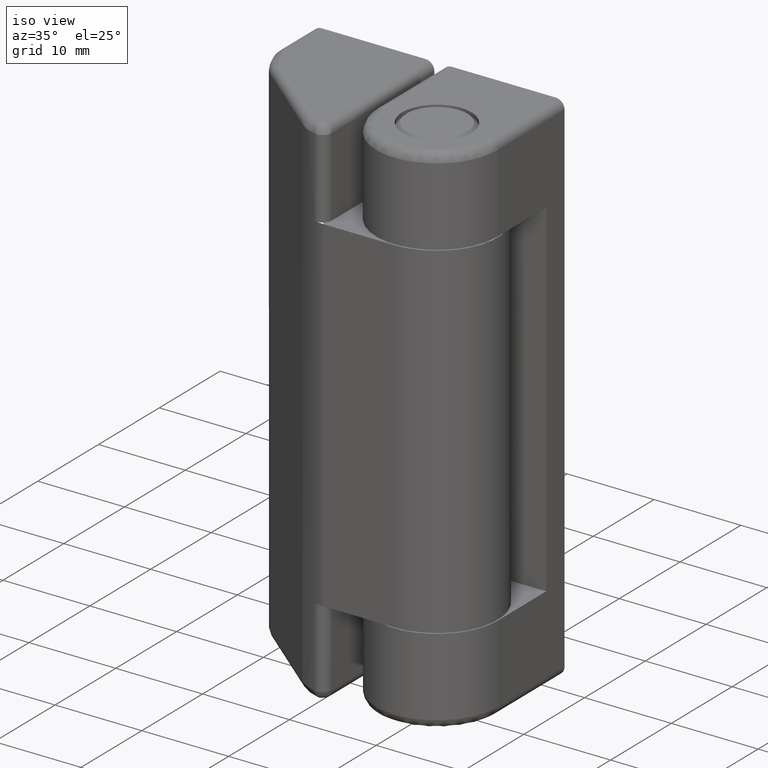
[diagram: clean part render]
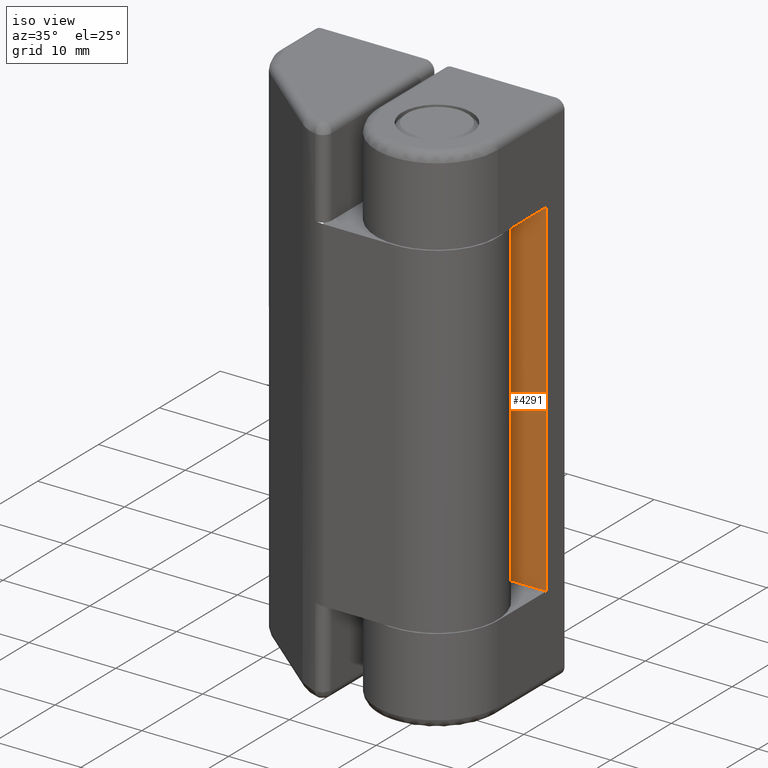
[diagram: same view with one face highlighted and labeled with its STEP entity id]
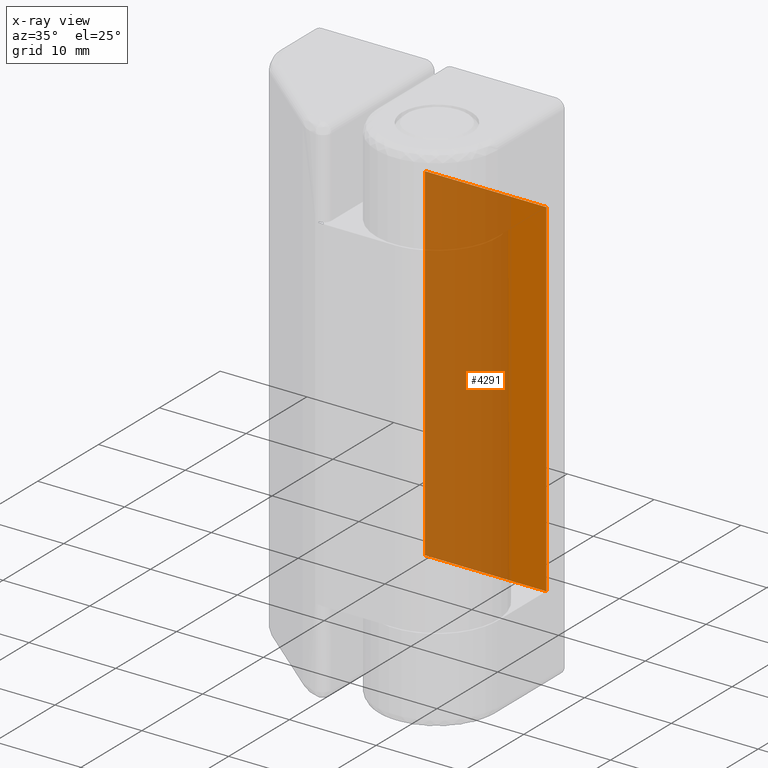
[diagram: x-ray of the same camera — body ghosted, the highlighted face saturated]
A machine part, iso view. The second image highlights one B-rep face of the part: STEP entity #4291.
The next image is the same camera in x-ray: the body ghosted, the highlighted face saturated — about 69% of this face is hidden behind the body in this view.
In plain terms, the highlighted face is a freeform B-spline surface patch.
Its self-contained STEP definition (entity closure, byte-faithful):
#4256=CARTESIAN_POINT('',(-7.699299972865284,8.0,8.002000077527764));
#4257=CARTESIAN_POINT('',(-7.699299972865284,8.0,51.998000995355852));
#4258=CARTESIAN_POINT('',(7.699300348374545,8.0,8.002000077527764));
#4259=CARTESIAN_POINT('',(7.699300348374545,8.0,51.998000995355852));
#4260=B_SPLINE_SURFACE_WITH_KNOTS('',1,1,((#4256,#4258),(#4257,#4259)),.UNSPECIFIED.,.F.,.F.,.U.,(2,2),(2,2),(0.0,43.996000917828077),(0.0,15.398600321239829),.UNSPECIFIED.);
#4261=CARTESIAN_POINT('',(7.0,8.0,10.0));
#4262=VERTEX_POINT('',#4261);
#4263=CARTESIAN_POINT('',(7.0,8.0,50.0));
#4264=VERTEX_POINT('',#4263);
#4265=CARTESIAN_POINT('',(7.0,8.0,10.0));
#4266=CARTESIAN_POINT('',(7.0,8.0,50.0));
#4267=QUASI_UNIFORM_CURVE('',1,(#4265,#4266),.UNSPECIFIED.,.F.,.U.);
#4268=EDGE_CURVE('',#4262,#4264,#4267,.T.);
#4269=ORIENTED_EDGE('',*,*,#4268,.T.);
#4270=CARTESIAN_POINT('',(-7.0,8.0,50.0));
#4271=VERTEX_POINT('',#4270);
#4272=CARTESIAN_POINT('',(-7.0,8.0,50.0));
#4273=CARTESIAN_POINT('',(7.0,8.0,50.0));
#4274=QUASI_UNIFORM_CURVE('',1,(#4272,#4273),.UNSPECIFIED.,.F.,.U.);
#4275=EDGE_CURVE('',#4271,#4264,#4274,.T.);
#4276=ORIENTED_EDGE('',*,*,#4275,.F.);
#4277=CARTESIAN_POINT('',(-7.0,8.0,10.0));
#4278=VERTEX_POINT('',#4277);
#4279=CARTESIAN_POINT('',(-7.0,8.0,10.0));
#4280=CARTESIAN_POINT('',(-7.0,8.0,50.0));
#4281=QUASI_UNIFORM_CURVE('',1,(#4279,#4280),.UNSPECIFIED.,.F.,.U.);
#4282=EDGE_CURVE('',#4278,#4271,#4281,.T.);
#4283=ORIENTED_EDGE('',*,*,#4282,.F.);
#4284=CARTESIAN_POINT('',(-7.0,8.0,10.0));
#4285=CARTESIAN_POINT('',(7.0,8.0,10.0));
#4286=QUASI_UNIFORM_CURVE('',1,(#4284,#4285),.UNSPECIFIED.,.F.,.U.);
#4287=EDGE_CURVE('',#4278,#4262,#4286,.T.);
#4288=ORIENTED_EDGE('',*,*,#4287,.T.);
#4289=EDGE_LOOP('',(#4269,#4276,#4283,#4288));
#4290=FACE_OUTER_BOUND('',#4289,.T.);
#4291=ADVANCED_FACE('',(#4290),#4260,.F.);